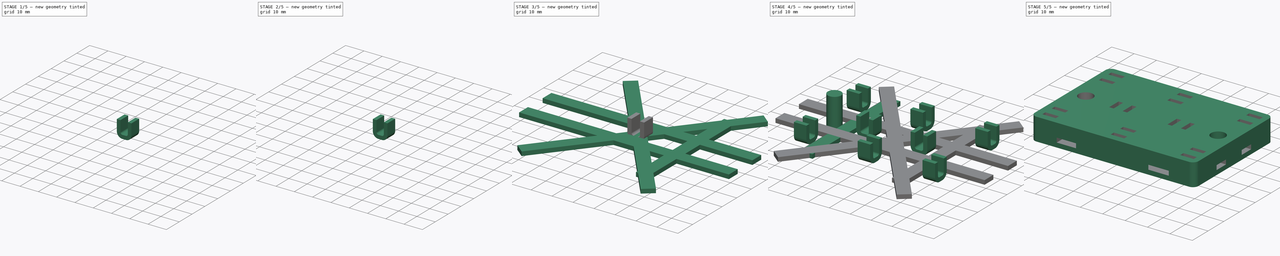
[diagram: build sequence overview — one tinted view per stage of 5, left to right]
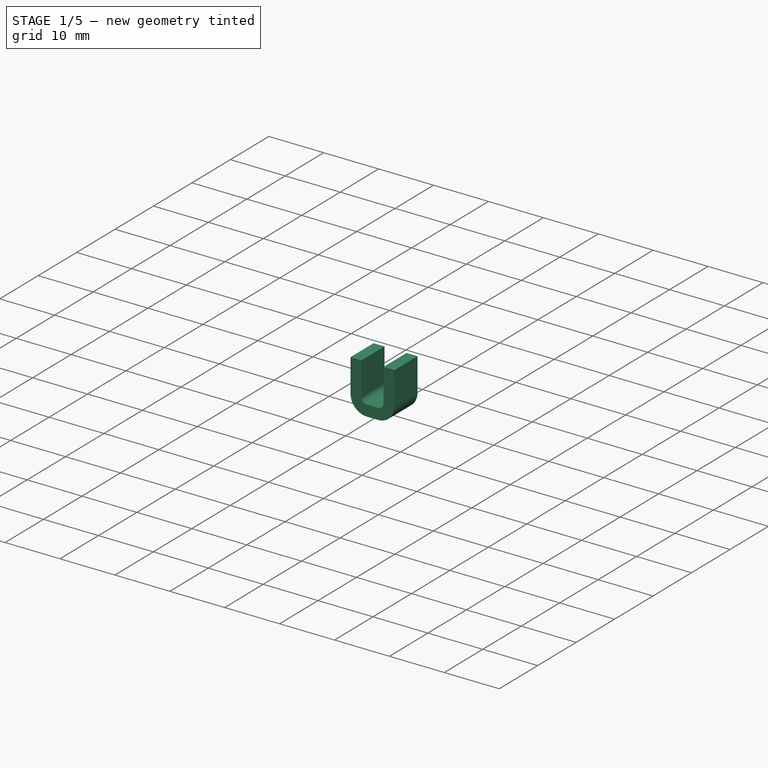
[diagram: stage 1 of 5 — iso view after this stage's code; geometry added in this stage tinted green]
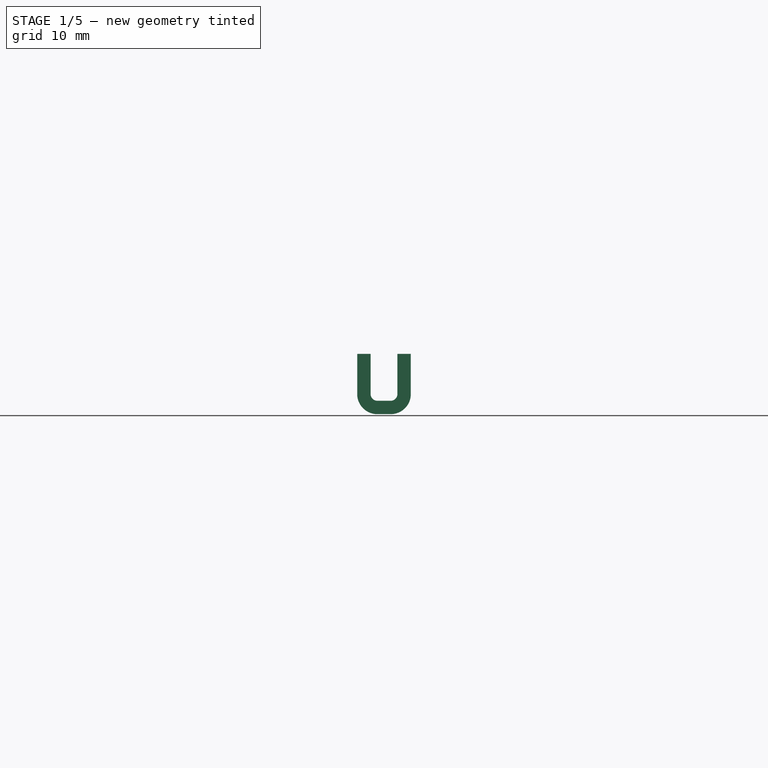
[diagram: stage 1 of 5 — front view after this stage's code; geometry added in this stage tinted green]
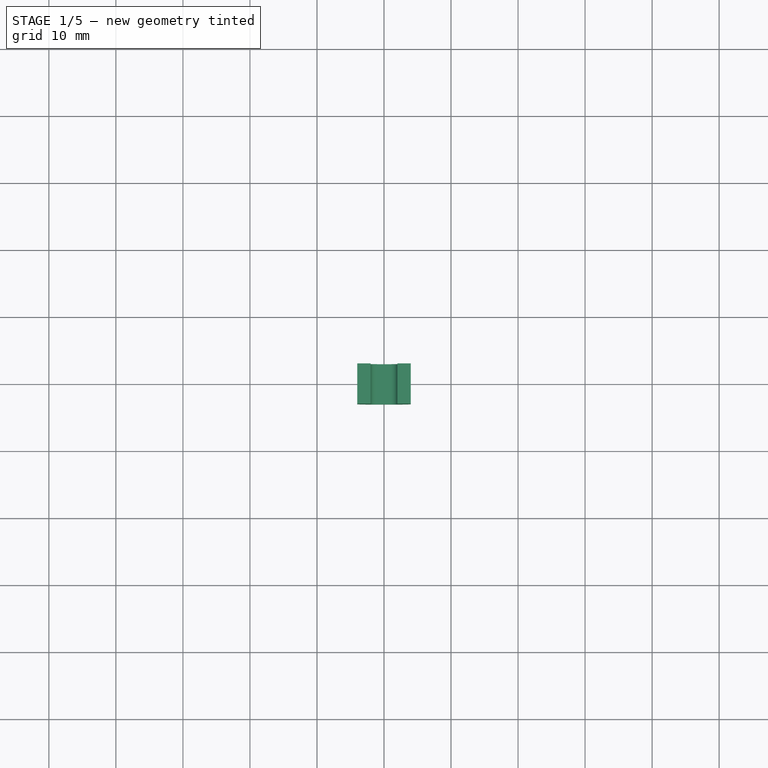
[diagram: stage 1 of 5 — top view after this stage's code; geometry added in this stage tinted green]
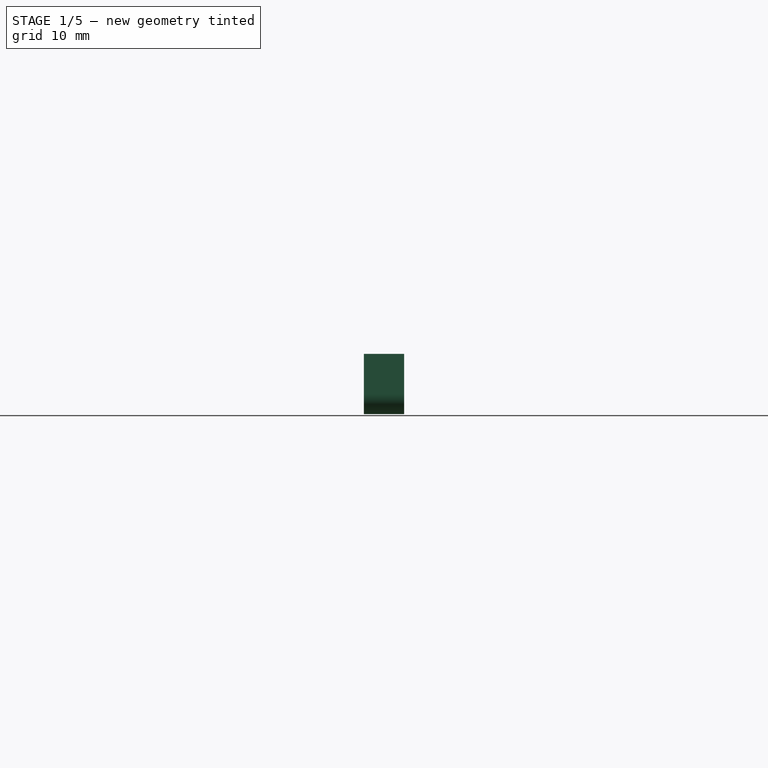
[diagram: stage 1 of 5 — right view after this stage's code; geometry added in this stage tinted green]
FCSTD DOCUMENT  (FreeCAD 0.21R33668 +7 (Git))
Label: FeinstaubkurkenHalter
License: All rights reserved
LicenseURL: https://en.wikipedia.org/wiki/All_rights_reserved
objects: PartDesign::Body×11, PartDesign::FeatureBase×8, Part::Box×6, Sketcher::SketchObject×3, PartDesign::Pad×3, Part::MultiFuse×2, Part::Cut×1, Part::Fillet×1
note: 38 computed .brp shape members not serialized (recipe doc carries the construction recipe); baked Part::Feature solids carry a one-line shape summary decoded from their .brp

FEATURE [PartDesign::Body] Body005
  Group = -> [Clone001]
  Origin = -> Origin005
  Placement = pos=(0,0,0) rot=(0,0,1;3.14159rad)
  Tip = -> Clone001
FEATURE [Sketcher::SketchObject] Sketch004
  FullyConstrained = true
  MapMode = 5
  Placement = pos=(0,0,0) rot=(1,0,0;1.5708rad)
  Support = -> [XZ_Plane006]
  sketch-geometry (12):
    g0: LineSegment StartX=-4 StartY=11 StartZ=0 EndX=-4 EndY=5 EndZ=0
    g1: LineSegment StartX=-1 StartY=2 StartZ=0 EndX=1 EndY=2 EndZ=0
    g2: LineSegment StartX=4 StartY=5 StartZ=0 EndX=4 EndY=11 EndZ=0
    g3: LineSegment StartX=4 StartY=11 StartZ=0 EndX=2 EndY=11 EndZ=0
    g4: LineSegment StartX=2 StartY=11 StartZ=0 EndX=2 EndY=5 EndZ=0
    g5: LineSegment StartX=1 StartY=4 StartZ=0 EndX=-1 EndY=4 EndZ=0
    g6: LineSegment StartX=-2 StartY=5 StartZ=0 EndX=-2 EndY=11 EndZ=0
    g7: LineSegment StartX=-2 StartY=11 StartZ=0 EndX=-4 EndY=11 EndZ=0
    g8: ArcOfCircle CenterX=-1 CenterY=5 CenterZ=0 NormalX=0 NormalY=0 NormalZ=1 AngleXU=0 Radius=3 StartAngle=3.14159 EndAngle=4.71239
    g9: ArcOfCircle CenterX=1 CenterY=5 CenterZ=0 NormalX=0 NormalY=0 NormalZ=1 AngleXU=0 Radius=3 StartAngle=4.71239 EndAngle=6.28319
    g10: ArcOfCircle CenterX=-1 CenterY=5 CenterZ=0 NormalX=0 NormalY=0 NormalZ=1 AngleXU=0 Radius=1 StartAngle=3.14159 EndAngle=4.71239
    g11: ArcOfCircle CenterX=1 CenterY=5 CenterZ=0 NormalX=0 NormalY=0 NormalZ=1 AngleXU=0 Radius=1 StartAngle=4.71239 EndAngle=6.28319
  constraints (30):
    c: Vertical(g2)
    c: Coincident(g2,g3)
    c: Horizontal(g3)
    c: Coincident(g3,g4)
    c: Vertical(g4)
    c: Horizontal(g5)
    c: Coincident(g6,g7)
    c: Coincident(g7,g0)
    c: Horizontal(g7)
    c: Vertical(g0)
    c: Symmetric(g6,g3,g-2)
    c: Vertical(g6)
    c: Tangent(g0,g8) = -1.5708
    c: Tangent(g1,g8) = -1.5708
    c: Tangent(g1,g9) = -1.5708
    c: Tangent(g2,g9) = -1.5708
    c: Equal(g8,g9)
    c: Radius(g8) = 3
    c: Symmetric(g1,g1,g-2)
    c: DistanceX(g7,g7) = 2
    c: Tangent(g5,g10) = 1.5708
    c: Tangent(g6,g10) = 1.5708
    c: Tangent(g4,g11) = 1.5708
    c: Tangent(g5,g11) = 1.5708
    c: Equal(g10,g11)
    c: Radius(g11) = 1
    c: DistanceY(g1,g5) = 2
    c: DistanceX(g0,g2) = 8
    c: DistanceY(g1,g6) = 9
    c: DistanceY(g-1,g1) = 2
FEATURE [PartDesign::Pad] Pad004
  Direction = (0,-1,2e-16)
  Length = 6
  Length2 = 10
  Midplane = true
  Placement = pos=(0,0,0) rot=(1,0,0;1.5708rad)
  Profile = -> Sketch004
  ReferenceAxis = -> Sketch004 [N_Axis]
  Type = 0
FEATURE [PartDesign::Body] Body010
  Group = -> [Clone005]
  Origin = -> Origin010
  Placement = pos=(0,-18,0) rot=(0,0,1;1.5708rad)
  Tip = -> Clone005
FEATURE [PartDesign::FeatureBase] Clone006
  BaseFeature = -> Pad004
  Placement = pos=(0,0,0) rot=(1,0,0;1.5708rad)
FEATURE [PartDesign::Body] Body011
  Group = -> [Clone006]
  Origin = -> Origin011
  Placement = pos=(-30.5,18,0) rot=(0,0,1;1.5708rad)
  Tip = -> Clone006
FEATURE [PartDesign::FeatureBase] Clone007
  BaseFeature = -> Pad004
  Placement = pos=(0,0,0) rot=(1,0,0;1.5708rad)
FEATURE [PartDesign::Body] Body012
  Group = -> [Clone007]
  Origin = -> Origin012
  Placement = pos=(31,18,0) rot=(0,0,1;1.5708rad)
  Tip = -> Clone007
FEATURE [PartDesign::FeatureBase] Clone008
  BaseFeature = -> Pad004
  Placement = pos=(0,0,0) rot=(1,0,0;1.5708rad)
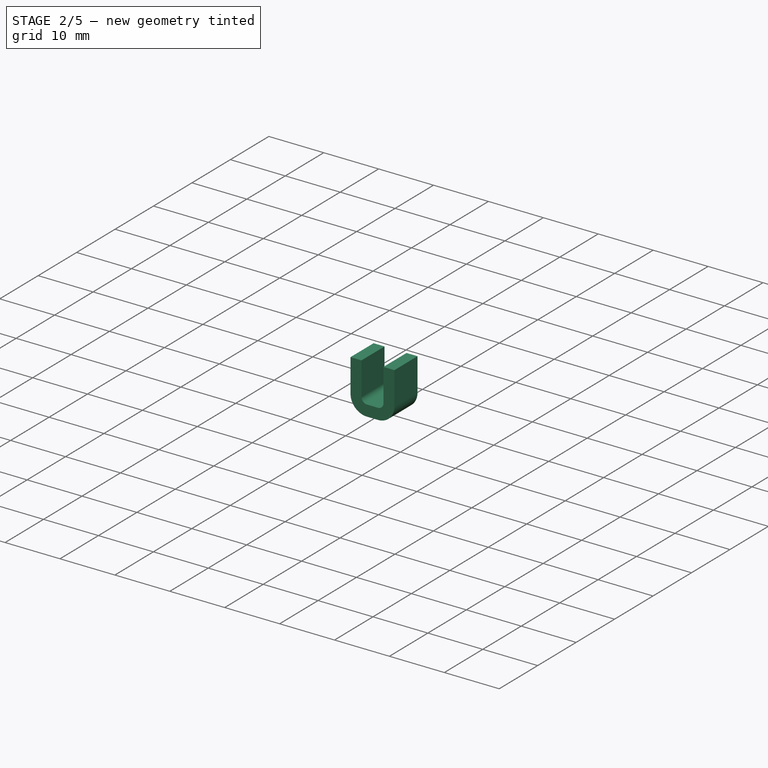
[diagram: stage 2 of 5 — iso view after this stage's code; geometry added in this stage tinted green]
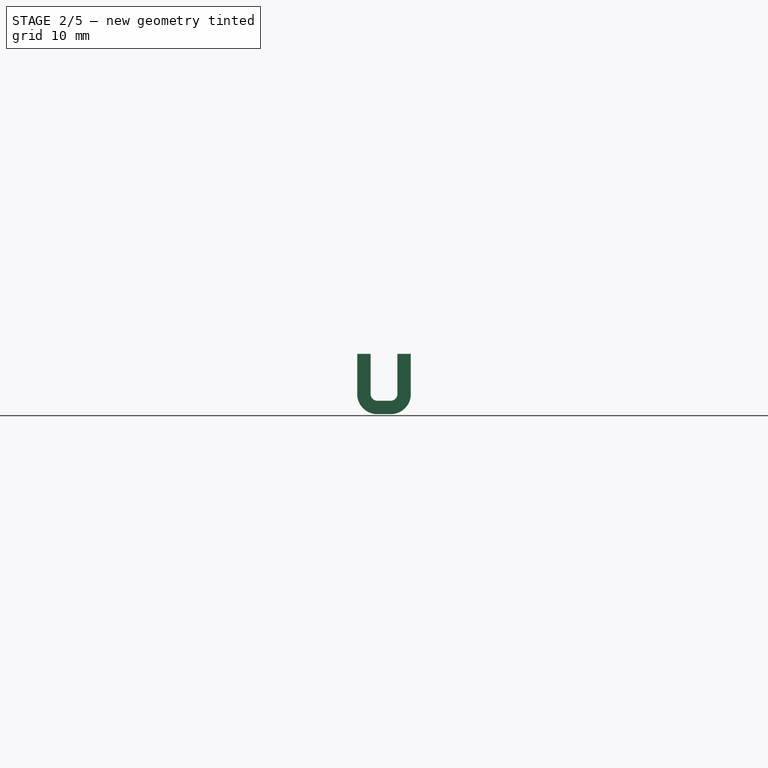
[diagram: stage 2 of 5 — front view after this stage's code; geometry added in this stage tinted green]
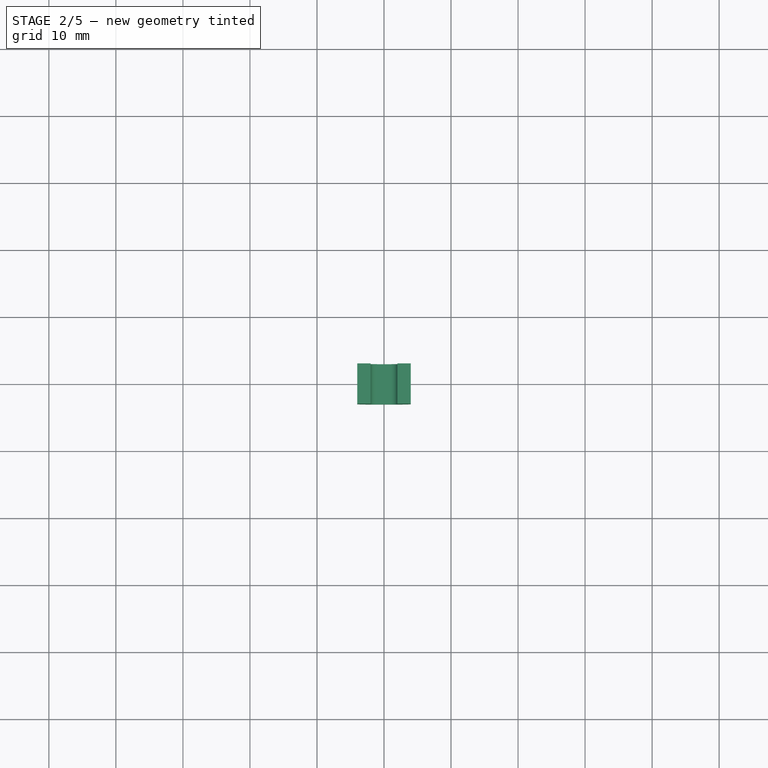
[diagram: stage 2 of 5 — top view after this stage's code; geometry added in this stage tinted green]
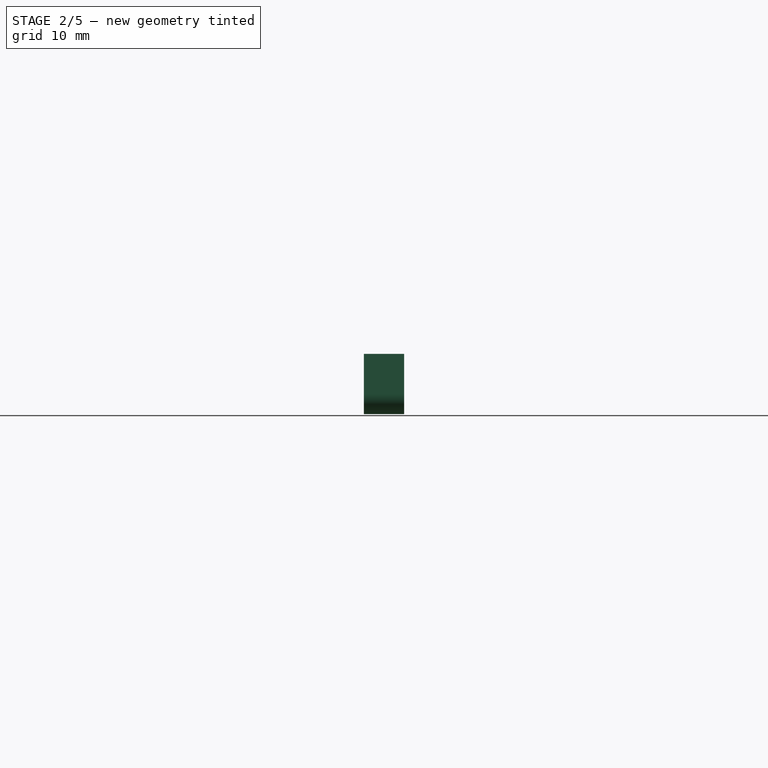
[diagram: stage 2 of 5 — right view after this stage's code; geometry added in this stage tinted green]
FEATURE [PartDesign::Body] Body006
  Group = -> [Sketch004,Pad004]
  Origin = -> Origin006
  Placement = pos=(13,0,0) rot=(0,0,1;0rad)
  Tip = -> Pad004
FEATURE [PartDesign::FeatureBase] Clone002
  BaseFeature = -> Pad004
  Placement = pos=(0,0,0) rot=(1,0,0;1.5708rad)
FEATURE [PartDesign::Body] Body007
  Group = -> [Clone002]
  Origin = -> Origin007
  Placement = pos=(-30.5,-18,0) rot=(0,0,1;1.5708rad)
  Tip = -> Clone002
FEATURE [PartDesign::FeatureBase] Clone003
  BaseFeature = -> Pad004
  Placement = pos=(0,0,0) rot=(1,0,0;1.5708rad)
FEATURE [PartDesign::Body] Body008
  Group = -> [Clone003]
  Origin = -> Origin008
  Placement = pos=(-13,0,0) rot=(0,0,1;0rad)
  Tip = -> Clone003
FEATURE [PartDesign::FeatureBase] Clone004
  BaseFeature = -> Pad004
  Placement = pos=(0,0,0) rot=(1,0,0;1.5708rad)
FEATURE [PartDesign::Body] Body009
  Group = -> [Clone004]
  Origin = -> Origin009
  Placement = pos=(0,18,0) rot=(0,0,1;1.5708rad)
  Tip = -> Clone004
FEATURE [PartDesign::FeatureBase] Clone005
  BaseFeature = -> Pad004
  Placement = pos=(0,0,0) rot=(1,0,0;1.5708rad)
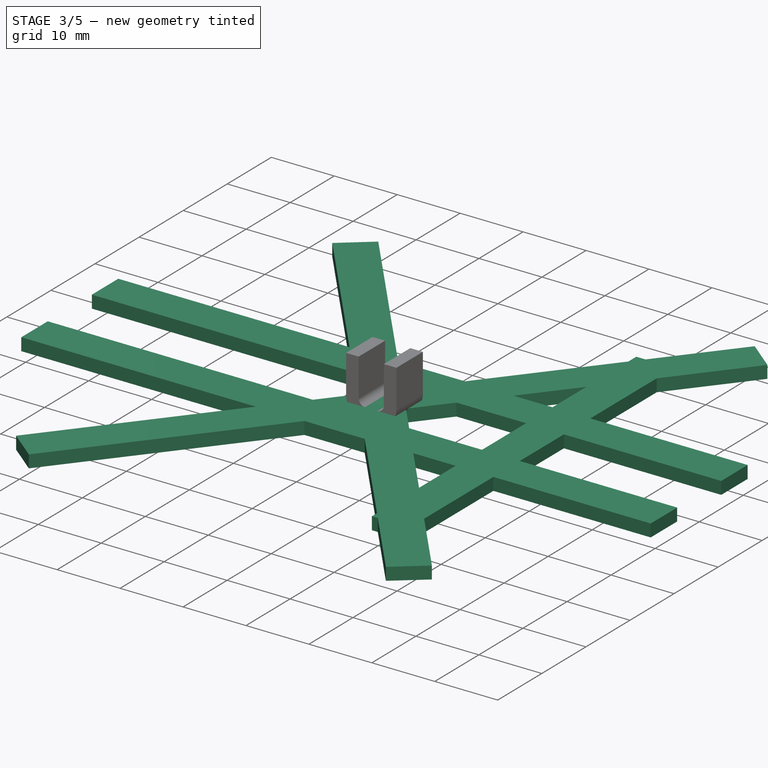
[diagram: stage 3 of 5 — iso view after this stage's code; geometry added in this stage tinted green]
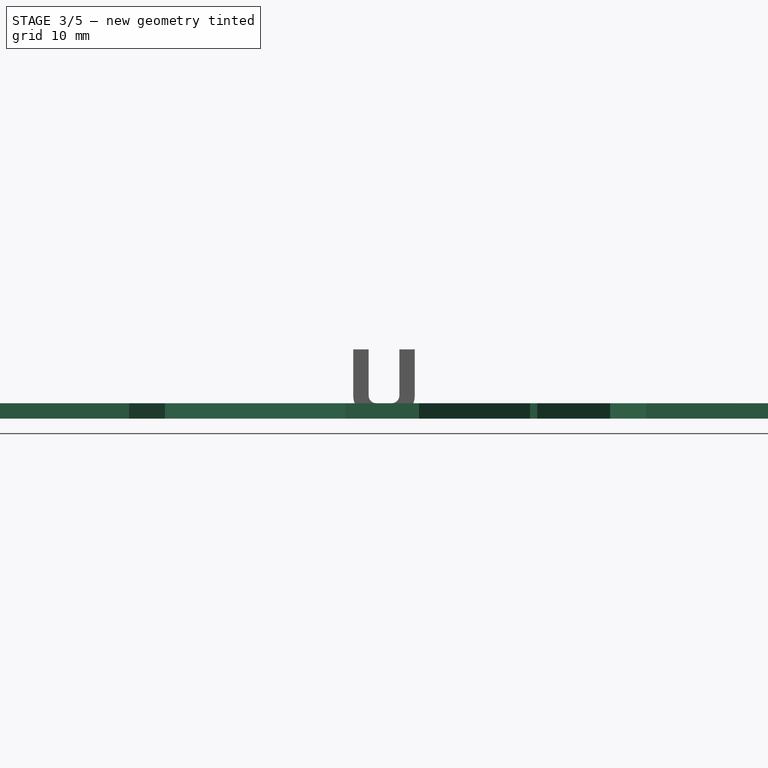
[diagram: stage 3 of 5 — front view after this stage's code; geometry added in this stage tinted green]
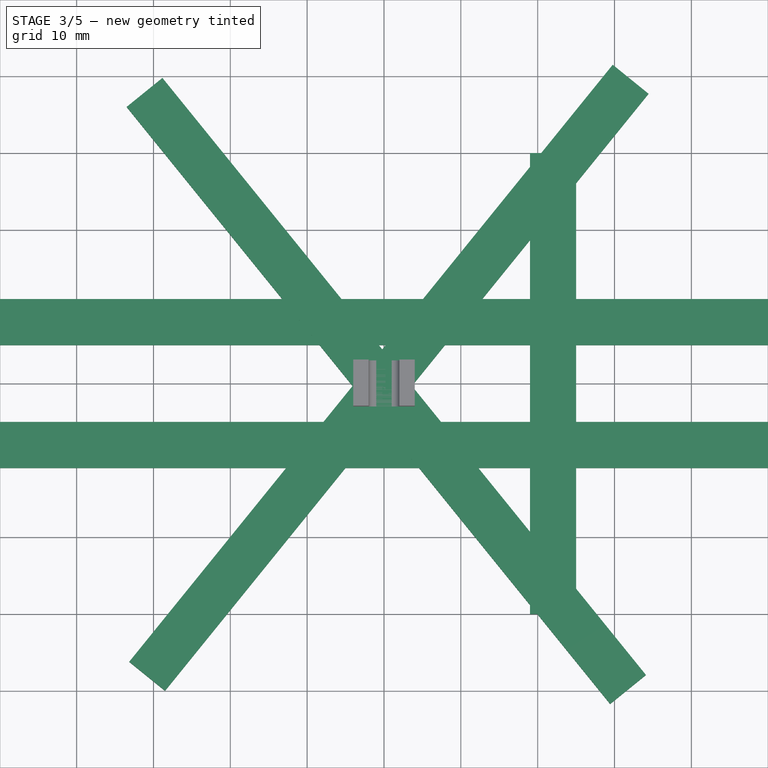
[diagram: stage 3 of 5 — top view after this stage's code; geometry added in this stage tinted green]
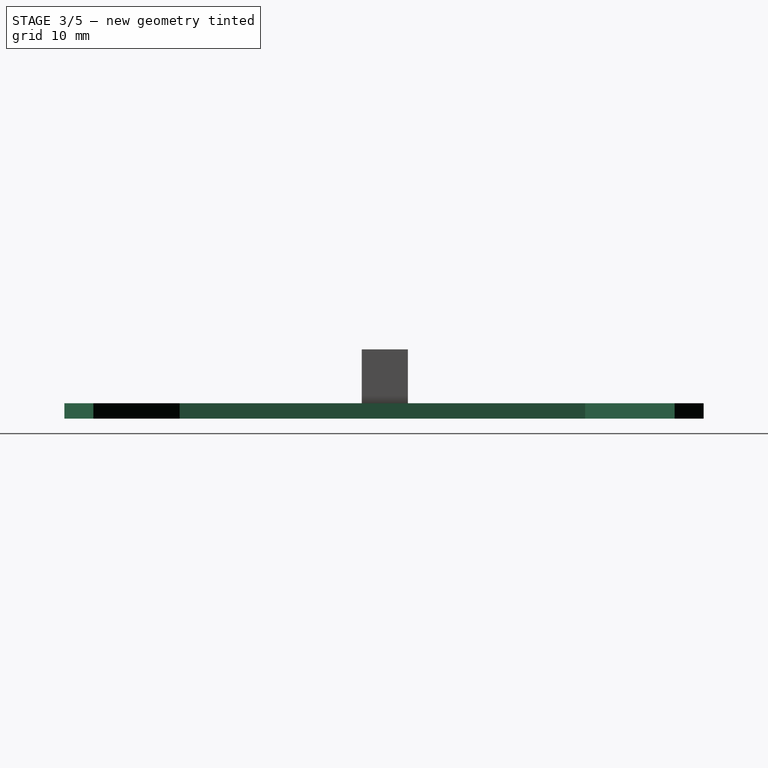
[diagram: stage 3 of 5 — right view after this stage's code; geometry added in this stage tinted green]
FEATURE [Part::Box] Box007  label="Cube007"
  AttacherType = Attacher::AttachEngine3D
  Height = 2
  Length = 6
  Placement = pos=(19,-30,2) rot=(0,0,1;0rad)
  Width = 60
FEATURE [Part::Box] Box008  label="Cube008"
  AttacherType = Attacher::AttachEngine3D
  Height = 2
  Length = 100
  Placement = pos=(-50,-11,2) rot=(0,0,1;0rad)
  Width = 6
FEATURE [Part::Box] Box009  label="Cube009"
  AttacherType = Attacher::AttachEngine3D
  Height = 2
  Length = 100
  Placement = pos=(-50,5,2) rot=(0,0,1;0rad)
  Width = 6
FEATURE [Part::Box] Box010  label="Cube010"
  AttacherType = Attacher::AttachEngine3D
  Height = 2
  Length = 100
  Placement = pos=(-28.5,-40,2) rot=(0,0,1;0.890118rad)
  Width = 6
FEATURE [Part::Box] Box011  label="Cube011"
  AttacherType = Attacher::AttachEngine3D
  Height = 2
  Length = 100
  Placement = pos=(-33.5,36,2) rot=(0,0,-1;0.890118rad)
  Width = 6
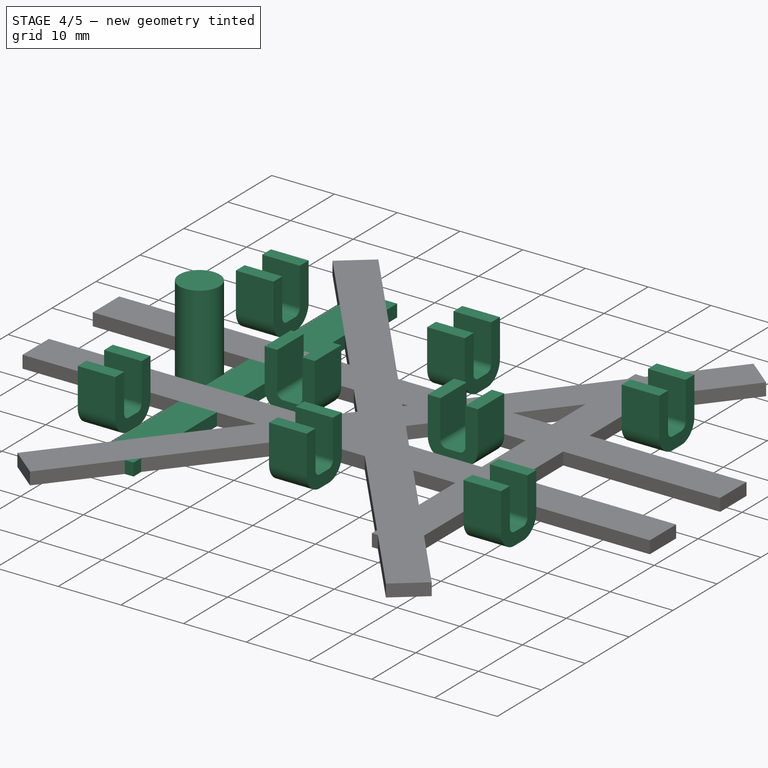
[diagram: stage 4 of 5 — iso view after this stage's code; geometry added in this stage tinted green]
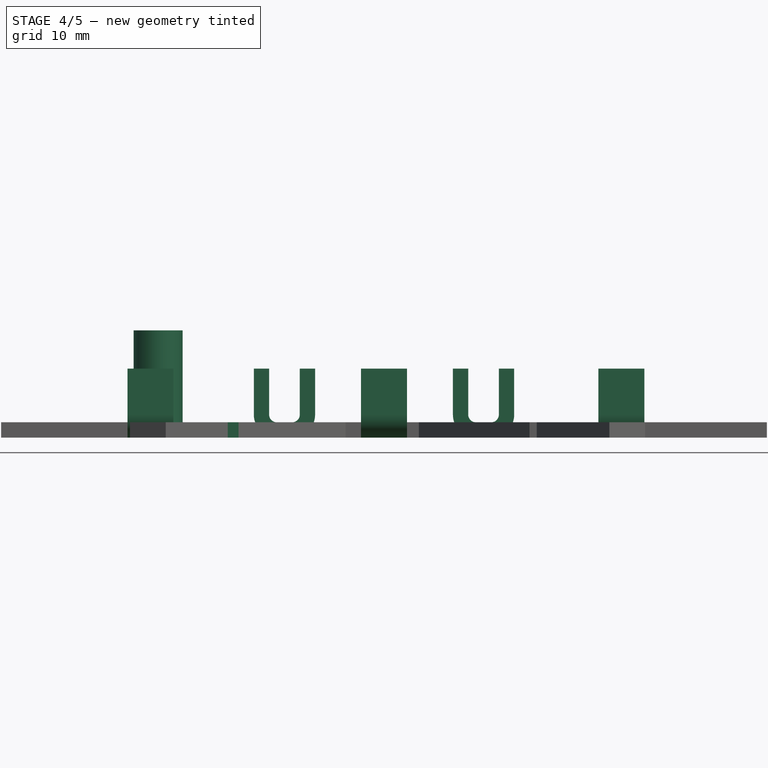
[diagram: stage 4 of 5 — front view after this stage's code; geometry added in this stage tinted green]
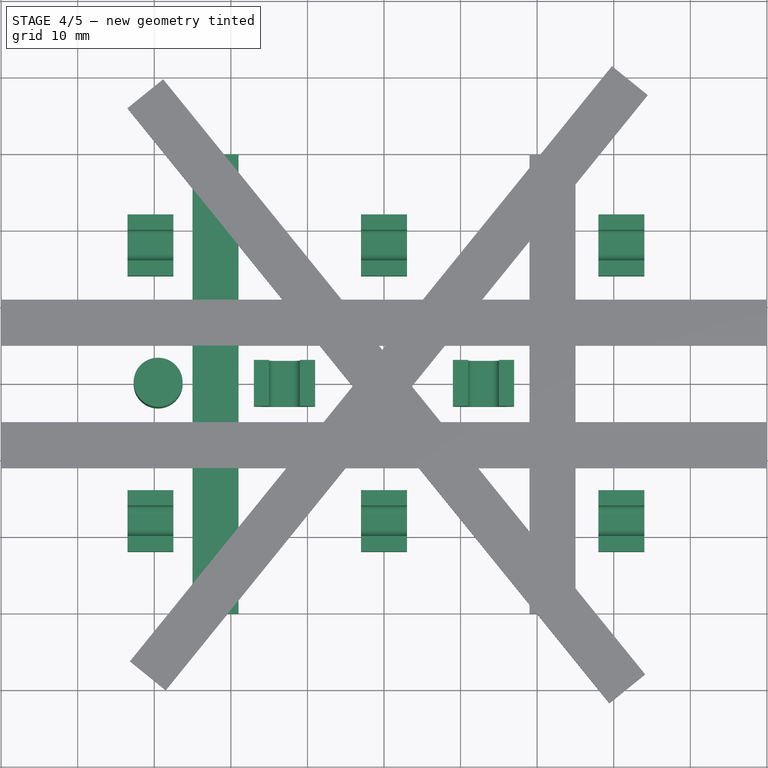
[diagram: stage 4 of 5 — top view after this stage's code; geometry added in this stage tinted green]
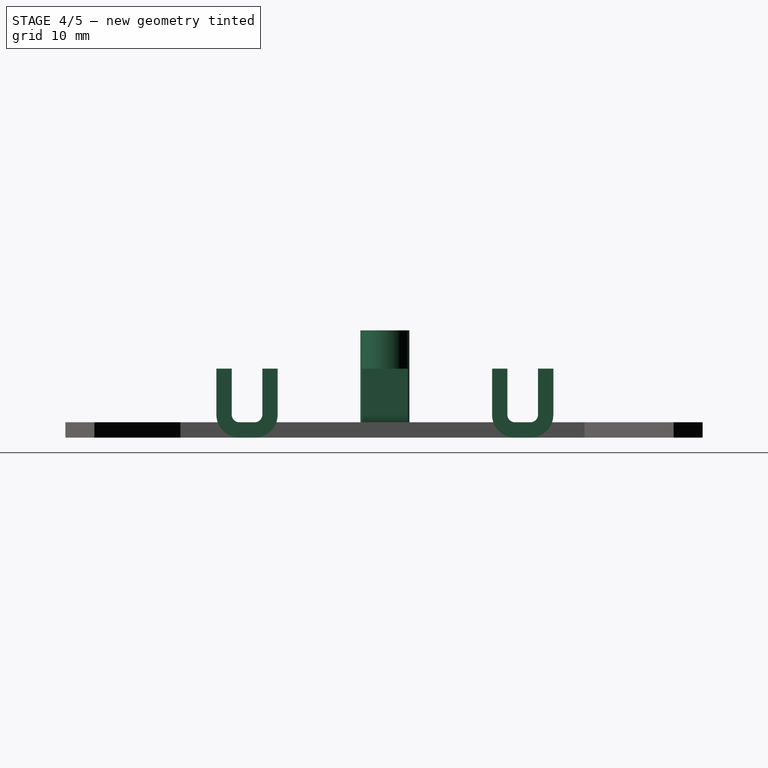
[diagram: stage 4 of 5 — right view after this stage's code; geometry added in this stage tinted green]
FEATURE [Part::Box] Box006  label="Cube006"
  AttacherType = Attacher::AttachEngine3D
  Height = 2
  Length = 6
  Placement = pos=(-25,-30,2) rot=(0,0,1;0rad)
  Width = 60
FEATURE [PartDesign::Body] Body003
  Group = -> [Sketch002,Pad002]
  Origin = -> Origin003
  Tip = -> Pad002
FEATURE [Sketcher::SketchObject] Sketch003
  FullyConstrained = true
  MapMode = 5
  Support = -> [XY_Plane004]
  sketch-geometry (1):
    g0: Circle CenterX=-29.5 CenterY=0 CenterZ=0 NormalX=0 NormalY=0 NormalZ=1 AngleXU=0 Radius=3.2
  constraints (3):
    c: PointOnObject(g0,g-1)
    c: Diameter(g0) = 6.4
    c: DistanceX(g0,g-1) = 29.5
FEATURE [PartDesign::Pad] Pad003
  Direction = (0,0,1)
  Length = 14
  Length2 = 10
  Profile = -> Sketch003
  ReferenceAxis = -> Sketch003 [N_Axis]
  Type = 0
FEATURE [PartDesign::Body] Body004
  Group = -> [Sketch003,Pad003]
  Origin = -> Origin004
  Placement = pos=(0,0,2) rot=(0,0,1;0rad)
  Tip = -> Pad003
FEATURE [PartDesign::FeatureBase] Clone001
  BaseFeature = -> Body004
  Placement = pos=(0,0,2) rot=(0,0,1;0rad)
FEATURE [PartDesign::Body] Body013
  Group = -> [Clone008]
  Origin = -> Origin013
  Placement = pos=(31,-18,0) rot=(0,0,1;1.5708rad)
  Tip = -> Clone008
FEATURE [Part::MultiFuse] Fusion002
  Refine = true
  Shapes = -> [Box006,Box007,Box008,Box009,Box010,Box011,Body006,Body007,Body008,Body009,Body010,Body011,Body012,Body013]
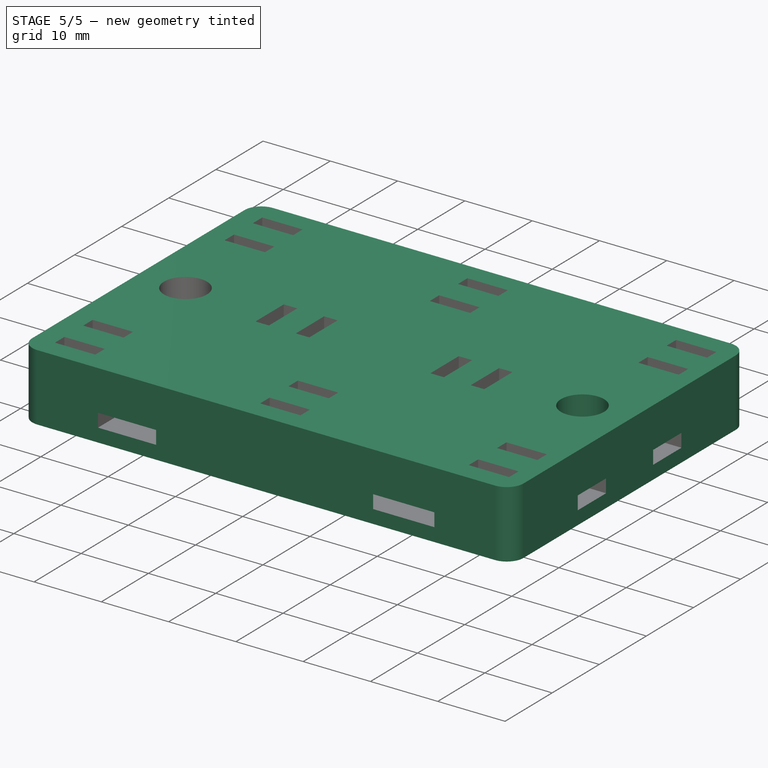
[diagram: stage 5 of 5 — iso view after this stage's code; geometry added in this stage tinted green]
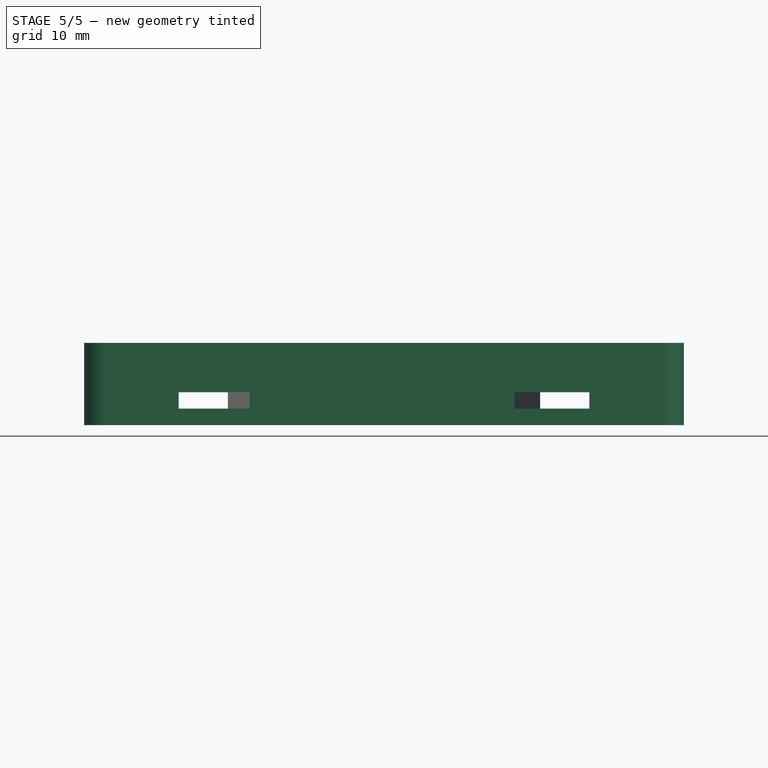
[diagram: stage 5 of 5 — front view after this stage's code; geometry added in this stage tinted green]
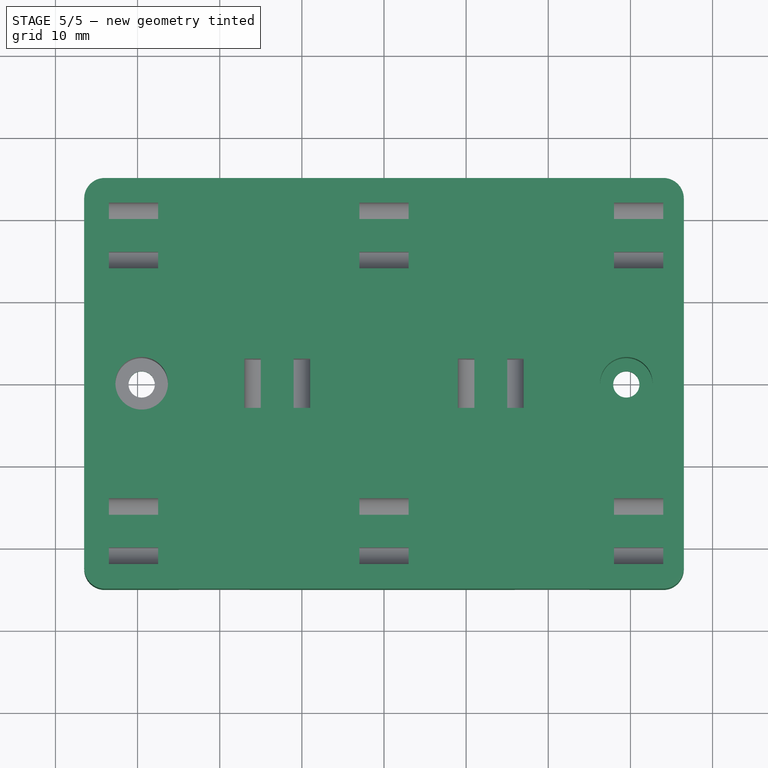
[diagram: stage 5 of 5 — top view after this stage's code; geometry added in this stage tinted green]
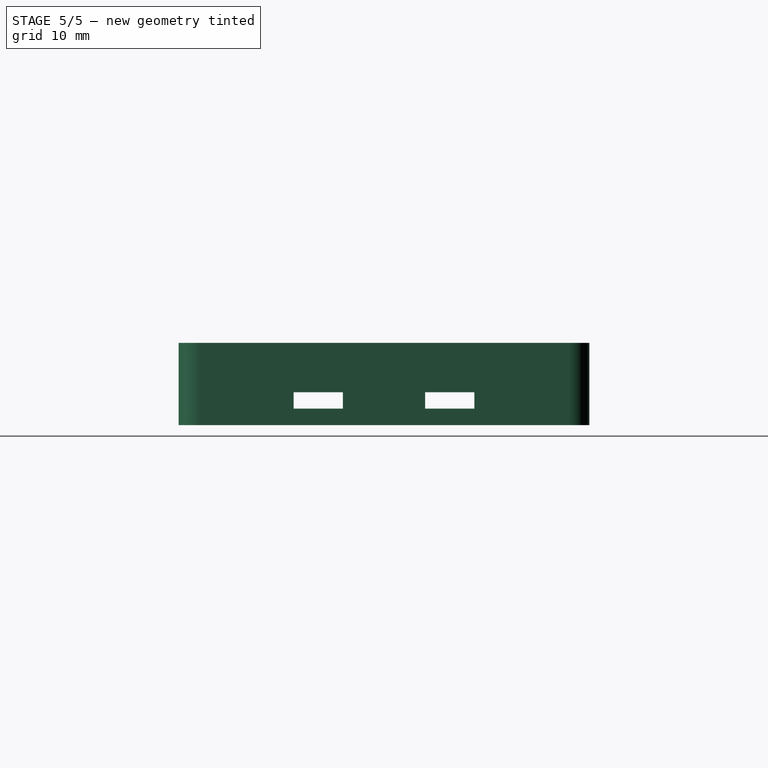
[diagram: stage 5 of 5 — right view after this stage's code; geometry added in this stage tinted green]
FEATURE [Sketcher::SketchObject] Sketch002
  FullyConstrained = true
  MapMode = 5
  Support = -> [XY_Plane003]
  sketch-geometry (6):
    g0: LineSegment StartX=-36.5 StartY=25 StartZ=0 EndX=36.5 EndY=25 EndZ=0
    g1: LineSegment StartX=36.5 StartY=25 StartZ=0 EndX=36.5 EndY=-25 EndZ=0
    g2: LineSegment StartX=36.5 StartY=-25 StartZ=0 EndX=-36.5 EndY=-25 EndZ=0
    g3: LineSegment StartX=-36.5 StartY=-25 StartZ=0 EndX=-36.5 EndY=25 EndZ=0
    g4: Circle CenterX=-29.5 CenterY=0 CenterZ=0 NormalX=0 NormalY=0 NormalZ=1 AngleXU=0 Radius=1.6
    g5: Circle CenterX=29.5 CenterY=0 CenterZ=0 NormalX=0 NormalY=0 NormalZ=1 AngleXU=0 Radius=1.6
  constraints (15):
    c: Coincident(g0,g1)
    c: Coincident(g1,g2)
    c: Coincident(g2,g3)
    c: Coincident(g3,g0)
    c: Horizontal(g0)
    c: Vertical(g1)
    c: DistanceX(g0,g0) = 73
    c: DistanceY(g3,g3) = 50
    c: Symmetric(g0,g2,g-1)
    c: Symmetric(g2,g1,g-2)
    c: PointOnObject(g4,g-1)
    c: Equal(g4,g5)
    c: Diameter(g4) = 3.2
    c: Symmetric(g4,g5,g-2)
    c: DistanceX(g4,g5) = 59
FEATURE [PartDesign::Pad] Pad002
  Direction = (0,0,1)
  Length = 10
  Length2 = 10
  Profile = -> Sketch002
  ReferenceAxis = -> Sketch002 [N_Axis]
  Type = 0
FEATURE [Part::MultiFuse] Fusion003
  Refine = true
  Shapes = -> [Body004,Body005,Fusion002]
FEATURE [Part::Cut] Cut001
  Base = -> Body003
  Tool = -> Fusion003
FEATURE [Part::Fillet] Fillet001
  Base = -> Cut001
  Edges = 4 edges r=2.5: [Edge1,Edge4,Edge13,Edge96]
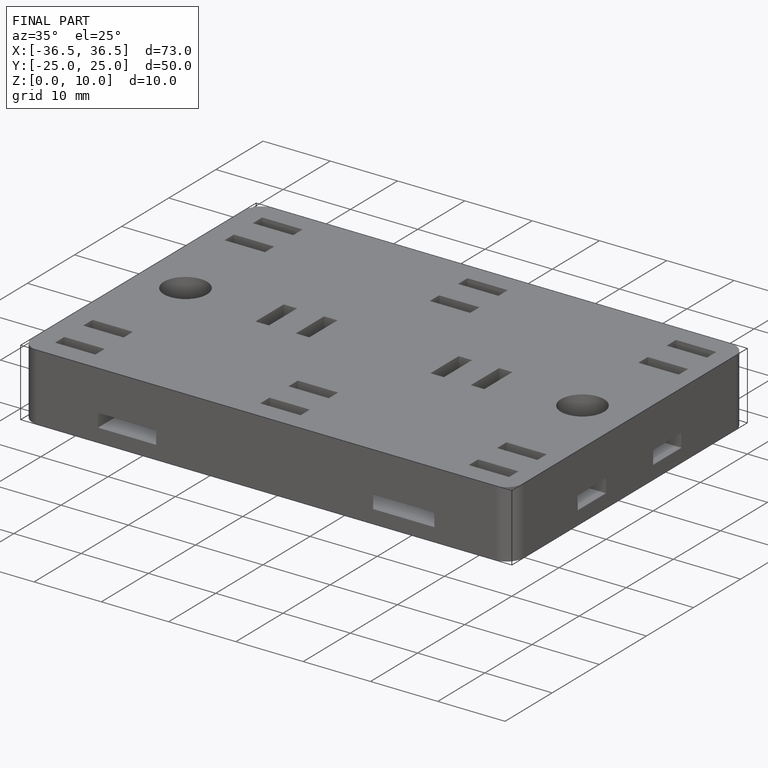
[diagram: finished part — iso view with bounding-box wireframe]
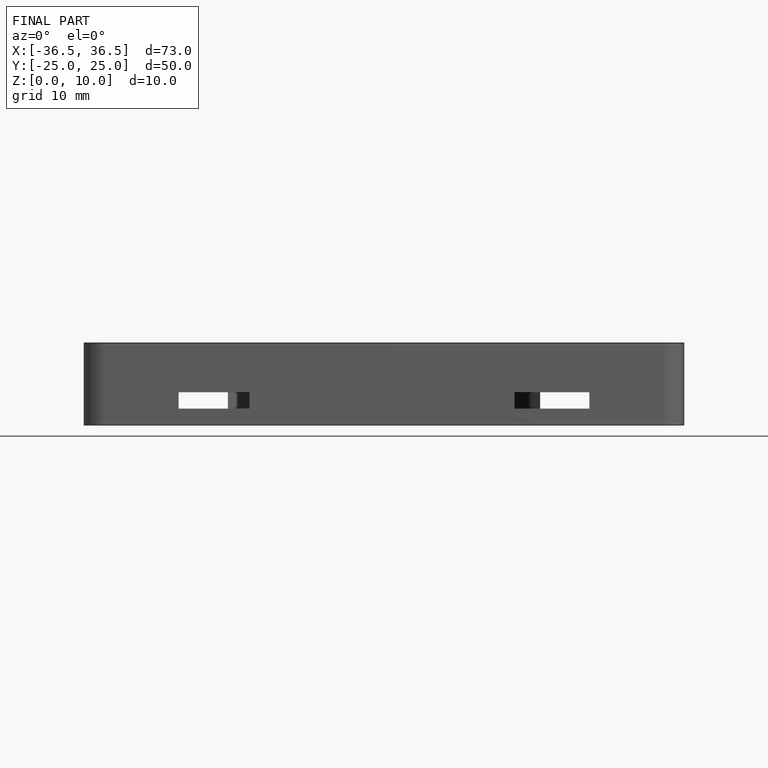
[diagram: finished part — front view with bounding-box wireframe]
